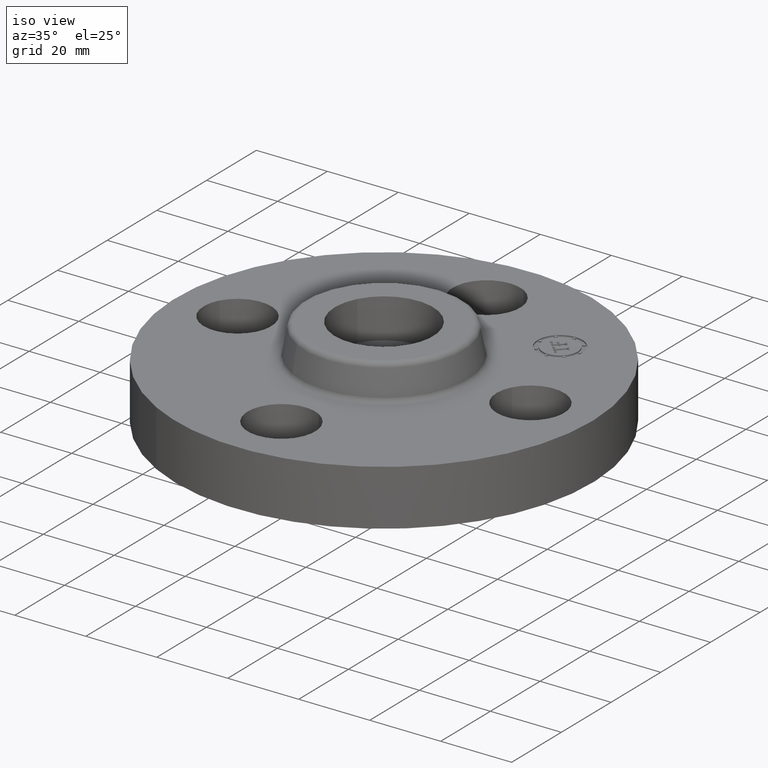
[diagram: clean part render]
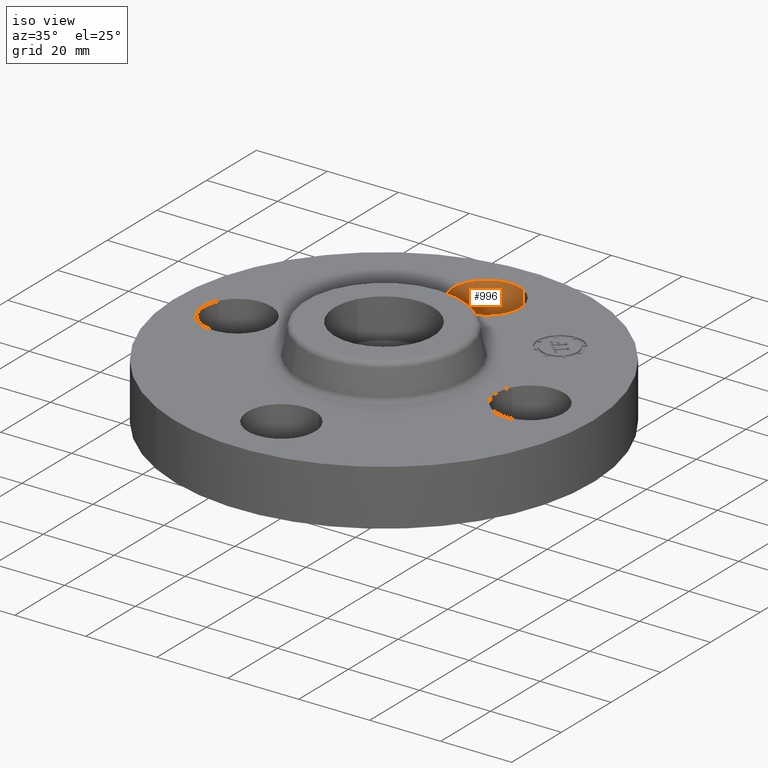
[diagram: same view with one face highlighted and labeled with its STEP entity id]
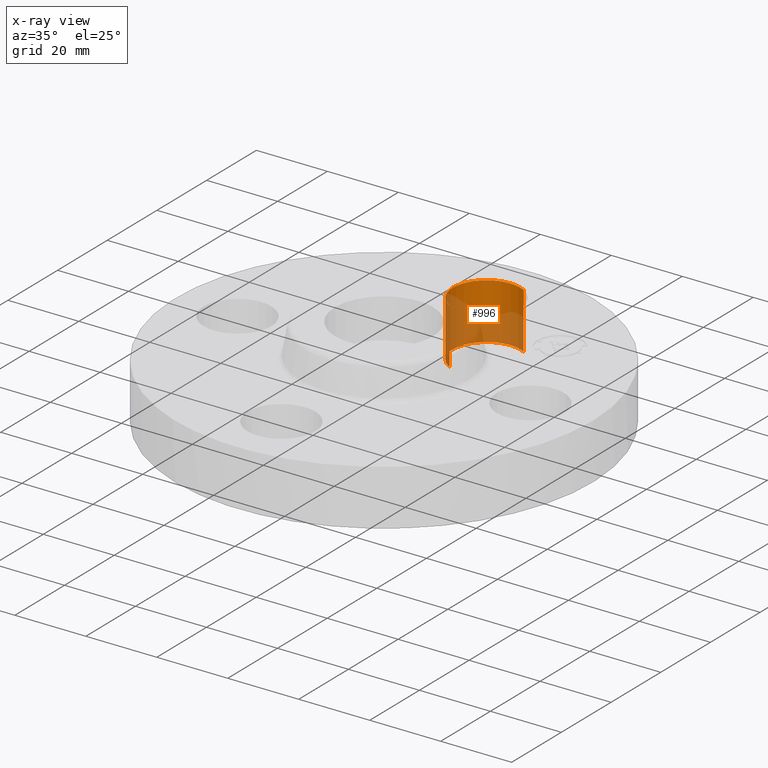
[diagram: x-ray of the same camera — body ghosted, the highlighted face saturated]
A machine part, iso view. The second image highlights one B-rep face of the part: STEP entity #996.
The next image is the same camera in x-ray: the body ghosted, the highlighted face saturated — about 59% of this face is hidden behind the body in this view.
In plain terms, the highlighted cylindrical surface (partial cylindrical patch) has radius 9.525 mm, axis along (-0, 0, -1).
Its self-contained STEP definition (entity closure, byte-faithful):
#584=AXIS2_PLACEMENT_3D('Circle Axis2P3D',#582,#583,$) ;
#969=AXIS2_PLACEMENT_3D('Cylinder Axis2P3D',#966,#967,#968) ;
#987=AXIS2_PLACEMENT_3D('Circle Axis2P3D',#985,#986,$) ;
#582=CARTESIAN_POINT('Axis2P3D Location',(1.28118688012E-011,1.62499999999,0.)) ;
#586=CARTESIAN_POINT('Vertex',(-0.179784576973,1.29590653927,0.)) ;
#588=CARTESIAN_POINT('Vertex',(0.179784576973,1.95409346073,0.)) ;
#966=CARTESIAN_POINT('Axis2P3D Location',(-2.98507657293E-016,1.62500000001,0.616062992128)) ;
#971=CARTESIAN_POINT('Line Origine',(-0.179784576977,1.2959065393,0.309999999994)) ;
#975=CARTESIAN_POINT('Vertex',(-0.179784576973,1.2959065393,0.620000000002)) ;
#978=CARTESIAN_POINT('Line Origine',(0.179784576977,1.95409346072,0.309999999994)) ;
#982=CARTESIAN_POINT('Vertex',(0.179784576977,1.95409346072,0.619999999987)) ;
#985=CARTESIAN_POINT('Axis2P3D Location',(-2.98507657293E-016,1.62500000001,0.619999999987)) ;
#583=DIRECTION('Axis2P3D Direction',(0.,0.,-0.0393700787402)) ;
#967=DIRECTION('Axis2P3D Direction',(-0.,0.,-0.0393700787402)) ;
#968=DIRECTION('Axis2P3D XDirection',(-0.0188750212049,-0.0345504945626,0.)) ;
#972=DIRECTION('Vector Direction',(0.,0.,-0.0393700787402)) ;
#979=DIRECTION('Vector Direction',(0.,0.,-0.0393700787402)) ;
#986=DIRECTION('Axis2P3D Direction',(-0.,0.,-0.0393700787402)) ;
#973=VECTOR('Line Direction',#972,0.0393700787402) ;
#980=VECTOR('Line Direction',#979,0.0393700787402) ;
#991=ORIENTED_EDGE('',*,*,#977,.F.) ;
#992=ORIENTED_EDGE('',*,*,#590,.T.) ;
#993=ORIENTED_EDGE('',*,*,#984,.T.) ;
#994=ORIENTED_EDGE('',*,*,#989,.F.) ;
#996=ADVANCED_FACE('PartBody',(#995),#970,.F.) ;
#585=CIRCLE('generated circle',#584,0.375000000021) ;
#988=CIRCLE('generated circle',#987,0.375000000001) ;
#970=CYLINDRICAL_SURFACE('generated cylinder',#969,0.375000000001) ;
#590=EDGE_CURVE('',#587,#589,#585,.T.) ;
#977=EDGE_CURVE('',#587,#976,#974,.F.) ;
#984=EDGE_CURVE('',#589,#983,#981,.F.) ;
#989=EDGE_CURVE('',#976,#983,#988,.T.) ;
#990=EDGE_LOOP('',(#991,#992,#993,#994)) ;
#995=FACE_OUTER_BOUND('',#990,.T.) ;
#974=LINE('Line',#971,#973) ;
#981=LINE('Line',#978,#980) ;
#587=VERTEX_POINT('',#586) ;
#589=VERTEX_POINT('',#588) ;
#976=VERTEX_POINT('',#975) ;
#983=VERTEX_POINT('',#982) ;